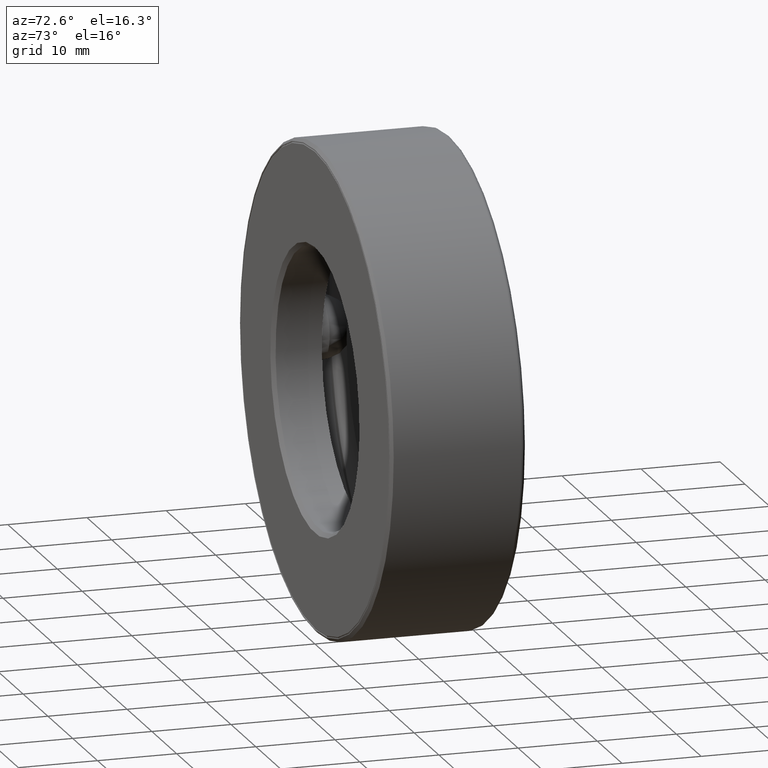
[diagram: clean part render]
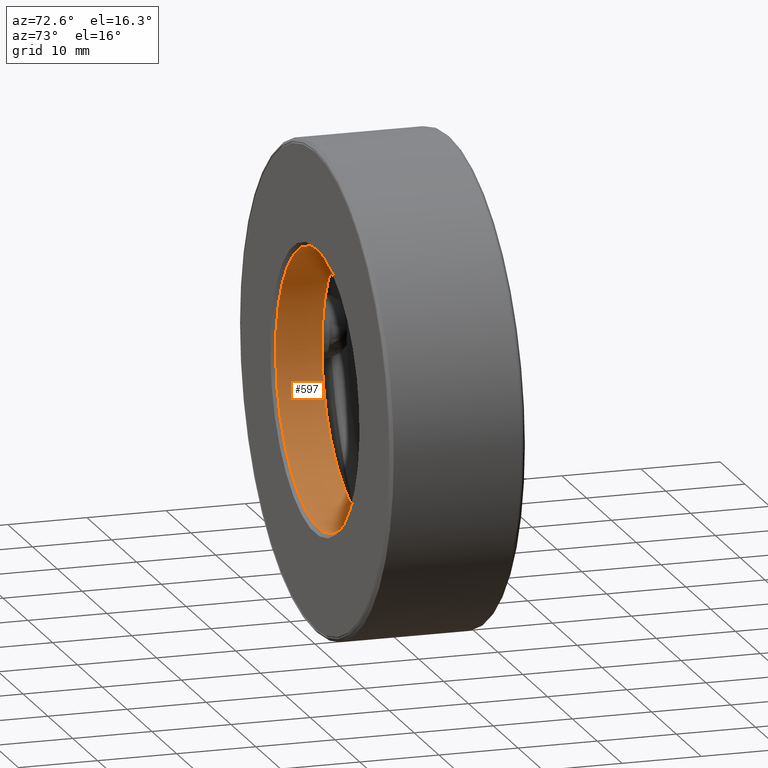
[diagram: same view with one face highlighted and labeled with its STEP entity id]
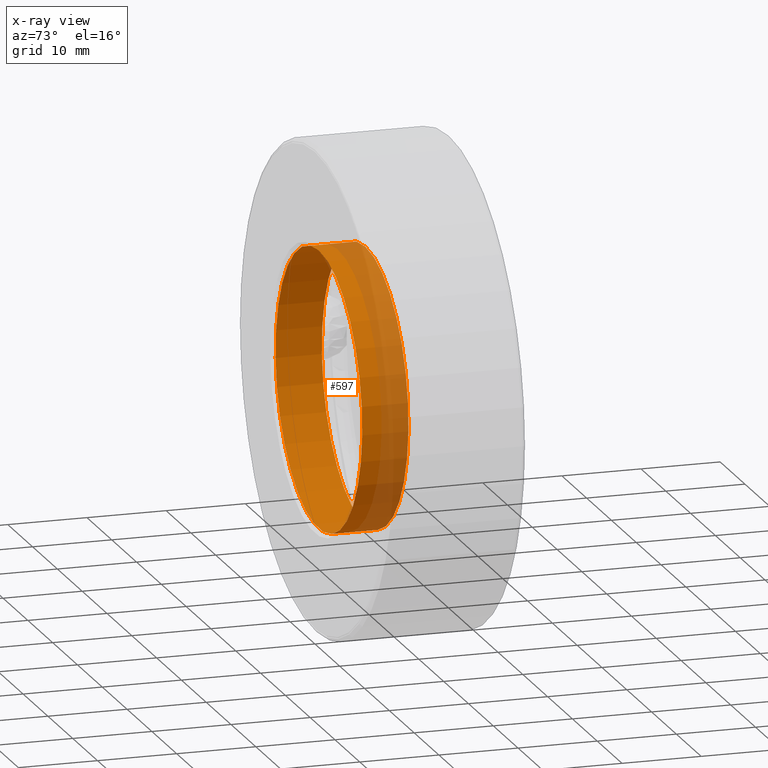
[diagram: x-ray of the same camera — body ghosted, the highlighted face saturated]
A machine part, auxiliary view. The second image highlights one B-rep face of the part: STEP entity #597.
The next image is the same camera in x-ray: the body ghosted, the highlighted face saturated — about 30% of this face is hidden behind the body in this view.
In plain terms, the highlighted cylindrical surface (bore or boss wall) has radius 17.4625 mm, axis along (-0, 1, -0).
Its self-contained STEP definition (entity closure, byte-faithful):
#16 = CARTESIAN_POINT ( 'NONE',  ( 0.0000000000000000000, 0.2500000000000001100, 0.0000000000000000000 ) ) ;
#36 = DIRECTION ( 'NONE',  ( 0.0000000000000000000, 0.0000000000000000000, 1.000000000000000000 ) ) ;
#88 = CIRCLE ( 'NONE', #438, 0.6875000000000000000 ) ;
#114 = AXIS2_PLACEMENT_3D ( 'NONE', #231, #280, #36 ) ;
#116 = CARTESIAN_POINT ( 'NONE',  ( 0.0000000000000000000, 0.02000000000000046900, 0.0000000000000000000 ) ) ;
#129 = AXIS2_PLACEMENT_3D ( 'NONE', #116, #495, #373 ) ;
#136 = VERTEX_POINT ( 'NONE', #234 ) ;
#161 = DIRECTION ( 'NONE',  ( -0.0000000000000000000, 1.000000000000000000, -0.0000000000000000000 ) ) ;
#163 = VERTEX_POINT ( 'NONE', #220 ) ;
#219 = ORIENTED_EDGE ( 'NONE', *, *, #238, .T. ) ;
#220 = CARTESIAN_POINT ( 'NONE',  ( 0.0000000000000000000, 0.02000000000000046900, 0.6874999999999998900 ) ) ;
#231 = CARTESIAN_POINT ( 'NONE',  ( 0.0000000000000000000, 0.0000000000000000000, 0.0000000000000000000 ) ) ;
#234 = CARTESIAN_POINT ( 'NONE',  ( 0.0000000000000000000, 0.2500000000000001100, 0.6875000000000000000 ) ) ;
#238 = EDGE_CURVE ( 'NONE', #136, #136, #88, .T. ) ;
#280 = DIRECTION ( 'NONE',  ( -0.0000000000000000000, 1.000000000000000000, -0.0000000000000000000 ) ) ;
#294 = EDGE_LOOP ( 'NONE', ( #219 ) ) ;
#311 = ORIENTED_EDGE ( 'NONE', *, *, #459, .F. ) ;
#373 = DIRECTION ( 'NONE',  ( 0.0000000000000000000, 0.0000000000000000000, 1.000000000000000000 ) ) ;
#384 = DIRECTION ( 'NONE',  ( 0.0000000000000000000, 0.0000000000000000000, 1.000000000000000000 ) ) ;
#435 = FACE_OUTER_BOUND ( 'NONE', #294, .T. ) ;
#438 = AXIS2_PLACEMENT_3D ( 'NONE', #16, #161, #384 ) ;
#459 = EDGE_CURVE ( 'NONE', #163, #163, #567, .T. ) ;
#495 = DIRECTION ( 'NONE',  ( -0.0000000000000000000, 1.000000000000000000, -0.0000000000000000000 ) ) ;
#509 = EDGE_LOOP ( 'NONE', ( #311 ) ) ;
#526 = FACE_OUTER_BOUND ( 'NONE', #509, .T. ) ;
#567 = CIRCLE ( 'NONE', #129, 0.6874999999999998900 ) ;
#585 = CYLINDRICAL_SURFACE ( 'NONE', #114, 0.6875000000000000000 ) ;
#597 = ADVANCED_FACE ( 'NONE', ( #526, #435 ), #585, .F. ) ;